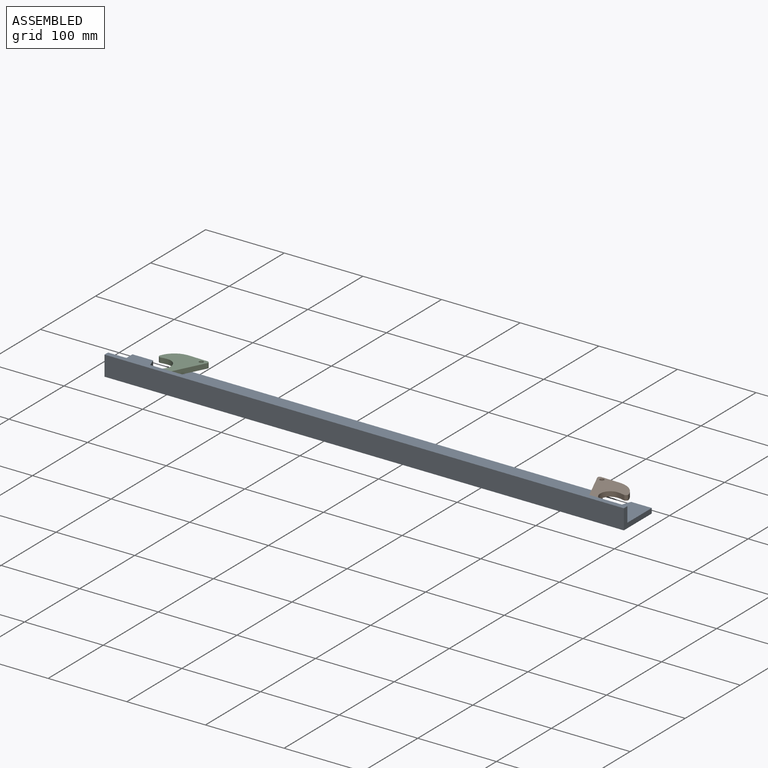
[diagram: assembled view]
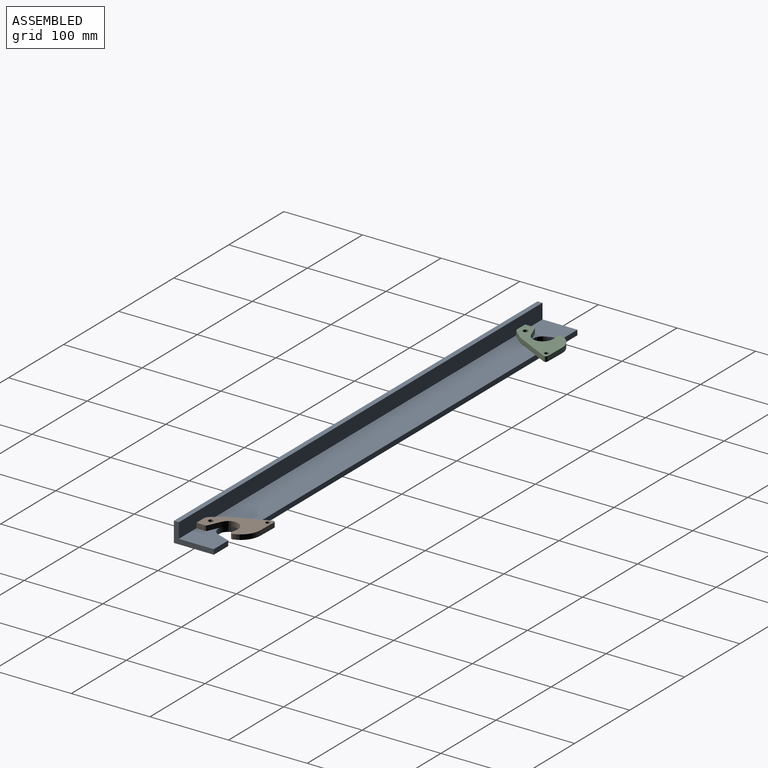
[diagram: assembled view, second angle]
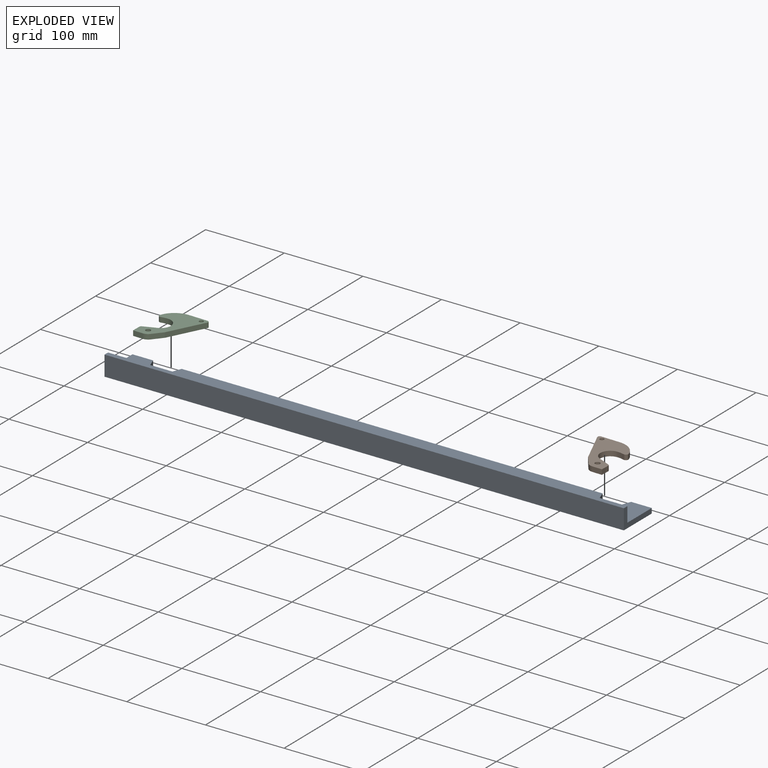
[diagram: exploded view]
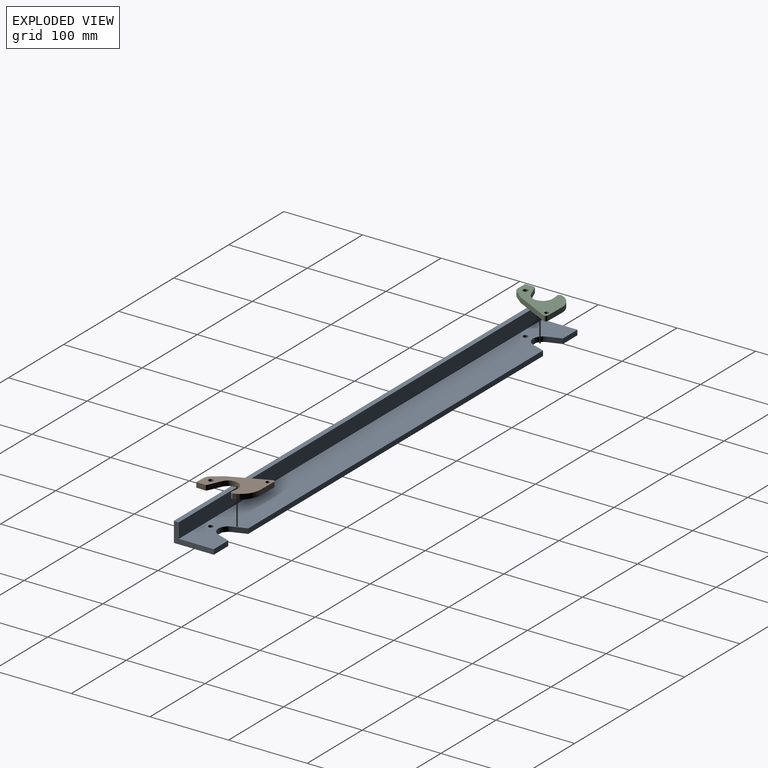
[diagram: exploded view, second angle]
ASSEMBLY  parts=3 mates=2
PART A: 18 faces, bbox 660.4x50.8x25.4 mm
  f0: plane 535.23x6.35mm, normal (0,1,0), area 3398.7mm2, adj f2,f3,f11,f16
  f1: plane 26.31x6.35mm, normal (0,1,0), area 167.1mm2, adj f2,f3,f9,f10
  f2: plane 660.4x50.8mm, normal (0,0,-1), area 32169.5mm2, adj f0,f1,f4,f5,f8,f9,f10,f11
  f3: plane 660.4x44.45mm, normal (0,0,1), area 27976mm2, adj f0,f1,f5,f6,f8,f9,f10,f11
  f4: plane 660.4x25.4mm, normal (0,-1,0), area 16774.2mm2, adj f2,f7,f8,f9
  f5: plane 26.31x6.35mm, normal (0,1,0), area 167.1mm2, adj f2,f3,f8,f15
  f6: plane 660.4x19.05mm, normal (0,1,0), area 12580.6mm2, adj f3,f7,f8,f9
  f7: plane 660.4x6.35mm, normal (0,0,1), area 4193.5mm2, adj f4,f6,f8,f9
  f8: plane 50.8x25.4mm, normal (1,0,0), area 443.5mm2, adj f2,f3,f4,f5,f6,f7
  f9: plane 50.8x25.4mm, normal (-1,0,0), area 443.5mm2, adj f1,f2,f3,f4,f6,f7
  f10: plane 17.04x6.35mm, normal (0.94,0.34,0), area 115.2mm2, adj f1,f2,f3,f12
  f11: plane 17.04x6.35mm, normal (-0.94,0.34,0), area 115.2mm2, adj f0,f2,f3,f12
  f12: cylinder r=12.7mm len=23.87mm, axis (0,0,1), area 197.1mm2, adj f2,f3,f10,f11
  f13: cylinder r=3.17mm len=6.35mm, axis (0,0,1), area 126.7mm2, adj f2,f3
  f14: cylinder r=3.17mm len=6.35mm, axis (0,0,1), area 126.7mm2, adj f2,f3
  f15: plane 17.04x6.35mm, normal (-0.94,0.34,0), area 115.2mm2, adj f2,f3,f5,f17
  f16: plane 17.04x6.35mm, normal (0.94,0.34,0), area 115.2mm2, adj f0,f2,f3,f17
  f17: cylinder r=12.7mm len=23.87mm, axis (0,0,1), area 197.1mm2, adj f2,f3,f15,f16
PART B: 18 faces, bbox 51.5x64.9x6.4 mm
  f0: cylinder r=35.05mm len=8.72mm, axis (0,0,1), area 56mm2, adj f1,f14,f16,f17
  f1: cylinder r=3.05mm len=6.35mm, axis (0,0,1), area 41.4mm2, adj f0,f2,f16,f17
  f2: cylinder r=25.4mm len=24.15mm, axis (0,0,1), area 202.4mm2, adj f1,f3,f16,f17
  f3: plane 24.46x6.35mm, normal (0,1,0), area 155.3mm2, adj f2,f4,f16,f17
  f4: cylinder r=2.54mm len=6.35mm, axis (0,0,1), area 32.5mm2, adj f3,f5,f16,f17
  f5: plane 45.45x21.5mm, normal (0.9,-0.43,0), area 319.3mm2, adj f4,f6,f16,f17
  f6: plane 11.89x9.32mm, normal (0.79,-0.62,0), area 96mm2, adj f5,f7,f16,f17
  f7: cylinder r=9.53mm len=7.7mm, axis (0,0,1), area 56.9mm2, adj f6,f8,f16,f17
  f8: plane 12.55x6.35mm, normal (0,-1,0), area 79.7mm2, adj f7,f9,f16,f17
  f9: plane 7.55x6.35mm, normal (-1,0,0), area 48mm2, adj f8,f10,f16,f17
  f10: cylinder r=12.7mm len=6.35mm, axis (0,0,1), area 25.1mm2, adj f9,f11,f16,f17
  f11: cylinder r=2.54mm len=6.35mm, axis (0,0,1), area 16.4mm2, adj f10,f12,f16,f17
  f12: plane 15.96x6.73mm, normal (-0.39,0.92,0), area 110mm2, adj f11,f14,f16,f17
  f13: cylinder r=3.17mm len=6.35mm, axis (0,0,1), area 126.7mm2, adj f16,f17
  f14: cylinder r=12.7mm len=24.4mm, axis (0,0,1), area 221.2mm2, adj f0,f12,f16,f17
  f15: cylinder r=2.63mm len=6.35mm, axis (0,0,1), area 105.1mm2, adj f16,f17
  f16: plane 64.89x51.47mm, normal (0,0,-1), area 1599mm2, adj f0,f1,f2,f3,f4,f5,f6,f7
  f17: plane 64.89x51.47mm, normal (0,0,1), area 1599mm2, adj f0,f1,f2,f3,f4,f5,f6,f7
PART C: same geometry as B
PLACE A t=(-268,185.07,26.09)mm fixed
PLACE B rot(axis=(-0.01,-1,0),180deg) t=(468.3,115.74,32.44)mm
PLACE C rot(axis=(0,0,-1),1.3deg) t=(-347.78,121.52,38.79)mm
MATE revolute B.f0 <-> A.f14  axis (0,0,-1) through (347.95,200.95,32.44)mm
MATE revolute A.f13 <-> C.f0  axis (0,0,1) through (-223.55,200.95,32.44)mm
